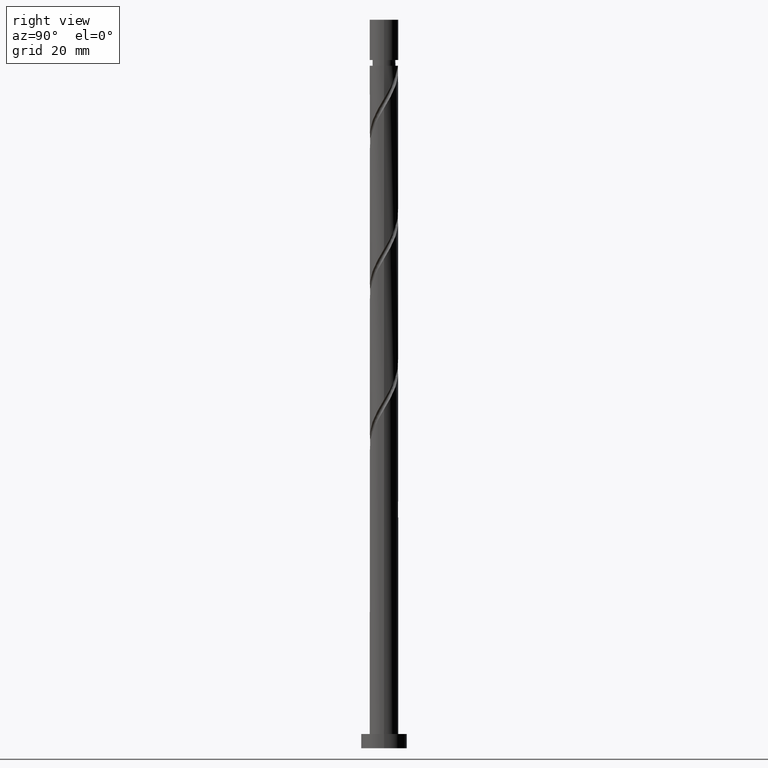
[diagram: clean part render]
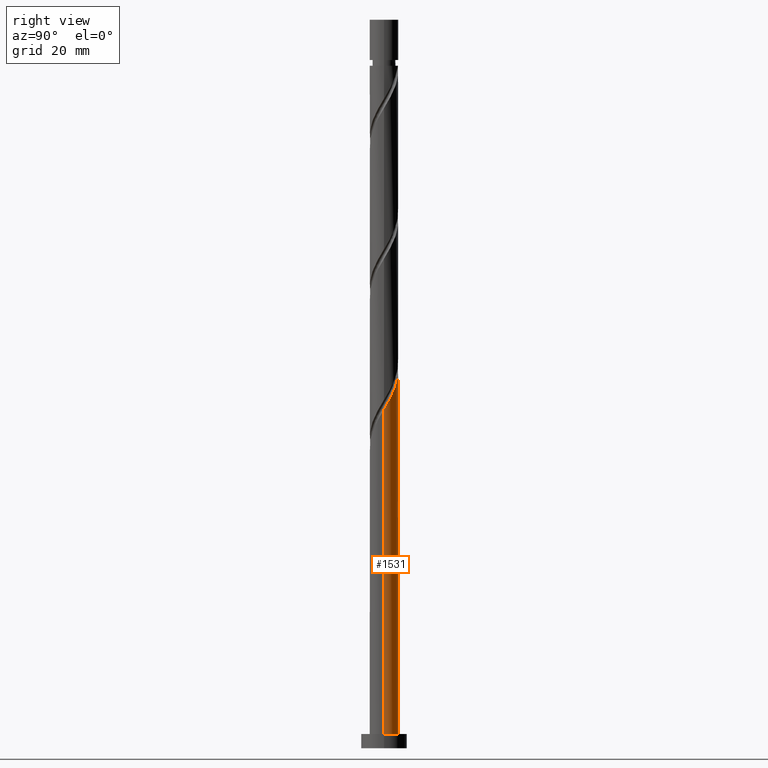
[diagram: same view with one face highlighted and labeled with its STEP entity id]
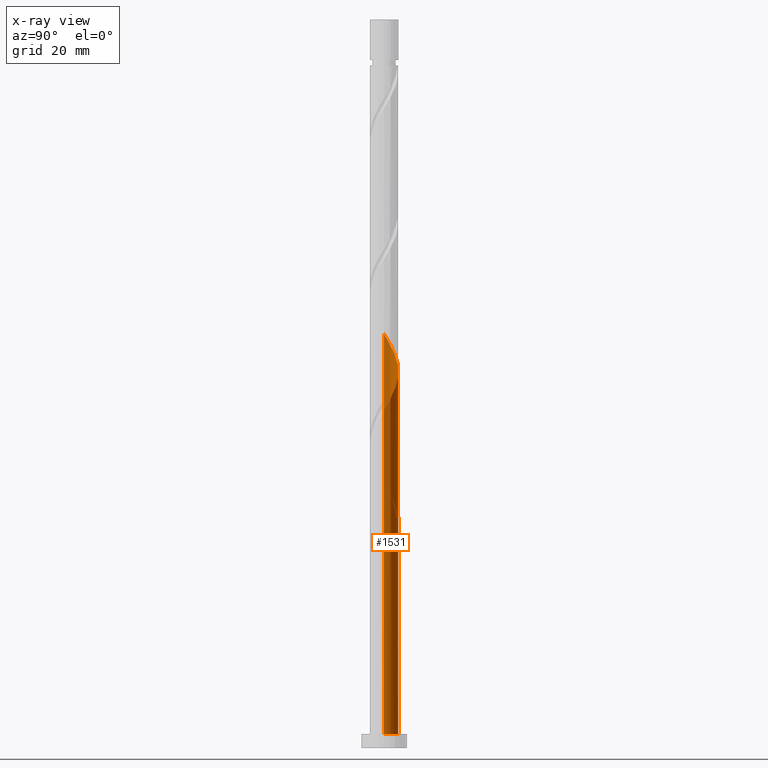
[diagram: x-ray of the same camera — body ghosted, the highlighted face saturated]
A machine part, right view. The second image highlights one B-rep face of the part: STEP entity #1531.
The next image is the same camera in x-ray: the body ghosted, the highlighted face saturated — about 0% of this face is hidden behind the body in this view.
In plain terms, the highlighted cylindrical surface (edge-blend (fillet) strip) has radius 5 mm, axis along (-0, -0, -1).
Its self-contained STEP definition (entity closure, byte-faithful):
#32 = CARTESIAN_POINT ( 'NONE',  ( 4.555741235911176190, 2.060393601091443205, 121.7202963200258523 ) ) ;
#78 = CARTESIAN_POINT ( 'NONE',  ( 3.210609744079814032, 3.833012532097933356, 125.4702963200258807 ) ) ;
#82 = CARTESIAN_POINT ( 'NONE',  ( -0.1203115516804385138, 4.998552303470702896, 82.34529632002593758 ) ) ;
#155 = VERTEX_POINT ( 'NONE', #333 ) ;
#160 = VECTOR ( 'NONE', #949, 1000.000000000000000 ) ;
#164 = CARTESIAN_POINT ( 'NONE',  ( -2.573702359565723352, 4.323590631524826478, 83.28279632002588073 ) ) ;
#165 = AXIS2_PLACEMENT_3D ( 'NONE', #1903, #1021, #742 ) ;
#171 = CARTESIAN_POINT ( 'NONE',  ( -3.471263693360518765, 3.642486534745257742, 137.6577963200258523 ) ) ;
#194 = CARTESIAN_POINT ( 'NONE',  ( -5.000000000000007994, -8.955464112915739142E-17, 144.4207792421198917 ) ) ;
#230 = CARTESIAN_POINT ( 'NONE',  ( 4.323590631524826478, 2.573702359565720688, 122.6577963200258807 ) ) ;
#250 = CARTESIAN_POINT ( 'NONE',  ( -4.323590631524821148, 2.573702359565719799, 90.78279632002590915 ) ) ;
#258 = DIRECTION ( 'NONE',  ( -0.000000000000000000, -0.000000000000000000, -1.000000000000000000 ) ) ;
#317 = CARTESIAN_POINT ( 'NONE',  ( 1.775642098820955139, 4.707916197378424705, 128.2827963200259092 ) ) ;
#321 = CARTESIAN_POINT ( 'NONE',  ( -5.000000000000007105, 0.06016448583194054789, 91.82041655389475920 ) ) ;
#333 = CARTESIAN_POINT ( 'NONE',  ( 0.9949874371066229628, 4.900000000000000355, 80.47029632002589494 ) ) ;
#336 = CARTESIAN_POINT ( 'NONE',  ( -4.984996447238927431, 0.6835131349569563142, 143.2827963200258523 ) ) ;
#384 = CIRCLE ( 'NONE', #687, 5.000000000000000000 ) ;
#386 = EDGE_CURVE ( 'NONE', #1915, #1895, #941, .T. ) ;
#398 = CARTESIAN_POINT ( 'NONE',  ( -2.277187526117659289, 4.451338784106883217, 86.09529632002593758 ) ) ;
#418 = VERTEX_POINT ( 'NONE', #1082 ) ;
#420 = DIRECTION ( 'NONE',  ( -0.000000000000000000, -0.000000000000000000, -1.000000000000000000 ) ) ;
#427 = CARTESIAN_POINT ( 'NONE',  ( 0.000000000000000000, 0.000000000000000000, 254.0000000000000000 ) ) ;
#440 = CARTESIAN_POINT ( 'NONE',  ( -3.833012532097933356, 3.210609744079813144, 86.09529632002590915 ) ) ;
#453 = LINE ( 'NONE', #1758, #934 ) ;
#462 = CARTESIAN_POINT ( 'NONE',  ( 4.900000000000006573, 0.9949874371066211864, 119.8452963200258665 ) ) ;
#506 = CARTESIAN_POINT ( 'NONE',  ( 5.000000000000000000, 6.123233995736766282E-16, 254.0000000000000000 ) ) ;
#515 = ORIENTED_EDGE ( 'NONE', *, *, #897, .F. ) ;
#525 = EDGE_LOOP ( 'NONE', ( #1284, #639, #914, #1750, #515, #1600, #1834, #1137 ) ) ;
#526 = CARTESIAN_POINT ( 'NONE',  ( 0.1203115516804404844, 4.998552303470705560, 131.0952963200258523 ) ) ;
#538 = CARTESIAN_POINT ( 'NONE',  ( -4.787891840297518797, 1.547084842617166389, 92.65779632002590915 ) ) ;
#557 = DIRECTION ( 'NONE',  ( 0.000000000000000000, 0.000000000000000000, 1.000000000000000000 ) ) ;
#561 = CARTESIAN_POINT ( 'NONE',  ( -5.000000000000000000, 0.000000000000000000, 254.0000000000000000 ) ) ;
#583 = CARTESIAN_POINT ( 'NONE',  ( -3.022483026463119060, 3.983038583135042110, 84.22029632002586652 ) ) ;
#584 = EDGE_CURVE ( 'NONE', #1915, #1354, #1095, .T. ) ;
#609 = CARTESIAN_POINT ( 'NONE',  ( -4.451338784106885882, 2.277187526117662841, 87.97029632002586652 ) ) ;
#623 = CARTESIAN_POINT ( 'NONE',  ( -4.194761370835351499, 2.778732953414371654, 139.5327963200259092 ) ) ;
#634 = CARTESIAN_POINT ( 'NONE',  ( 3.983038583135042554, 3.022483026463119060, 123.5952963200258807 ) ) ;
#639 = ORIENTED_EDGE ( 'NONE', *, *, #386, .T. ) ;
#642 = EDGE_CURVE ( 'NONE', #1306, #1733, #677, .T. ) ;
#661 = CARTESIAN_POINT ( 'NONE',  ( -1.775642098820951142, 4.707916197378419376, 85.15779632002592336 ) ) ;
#677 = LINE ( 'NONE', #561, #1872 ) ;
#687 = AXIS2_PLACEMENT_3D ( 'NONE', #1160, #557, #1610 ) ;
#710 = CARTESIAN_POINT ( 'NONE',  ( -5.000000000000007105, -8.955464112915740375E-17, 91.92077924211987749 ) ) ;
#722 = DIRECTION ( 'NONE',  ( -1.000000000000000000, 0.000000000000000000, 0.000000000000000000 ) ) ;
#742 = DIRECTION ( 'NONE',  ( -1.000000000000000000, 0.000000000000000000, 0.000000000000000000 ) ) ;
#756 = AXIS2_PLACEMENT_3D ( 'NONE', #427, #1762, #722 ) ;
#804 = CARTESIAN_POINT ( 'NONE',  ( -4.999999999999995559, 0.5025189076296284751, 94.43154231896829742 ) ) ;
#819 = CARTESIAN_POINT ( 'NONE',  ( 3.642486534745258187, 3.471263693360517433, 124.5327963200258807 ) ) ;
#821 = CIRCLE ( 'NONE', #165, 5.000000000000000000 ) ;
#823 = CARTESIAN_POINT ( 'NONE',  ( -3.642486534745251969, 3.471263693360514324, 88.90779632002590915 ) ) ;
#830 = CARTESIAN_POINT ( 'NONE',  ( -3.983038583135037225, 3.022483026463118172, 89.84529632002592336 ) ) ;
#848 =( BOUNDED_CURVE ( )  B_SPLINE_CURVE ( 2, ( #1248, #804, #1572, #538, #1554, #250, #830, #823, #1544, #1085, #398, #661, #1410, #1427, #82, #1565, #1691 ),
 .UNSPECIFIED., .F., .T. ) 
 B_SPLINE_CURVE_WITH_KNOTS ( ( 3, 2, 2, 2, 2, 2, 2, 2, 3 ),
 ( 0.9295303401299224166, 0.9375000000000000000, 0.9464285714285713969, 0.9553571428571429047, 0.9642857142857143016, 0.9732142857142856984, 0.9821428571428570953, 0.9910714285714286031, 1.000000000000000000 ),
 .UNSPECIFIED. ) 
 CURVE ( )  GEOMETRIC_REPRESENTATION_ITEM ( )  RATIONAL_B_SPLINE_CURVE ( ( 0.9079949616361921994, 0.9039886423360560253, 0.9090909090909224943, 0.9033747362665975889, 0.9090909090909224943, 0.9033747362665975889, 0.9090909090909224943, 0.9033747362665975889, 0.9090909090909224943, 0.9033747362665975889, 0.9090909090909224943, 0.9033747362665975889, 0.9090909090909224943, 0.9033747362665975889, 0.9090909090909224943, 0.9033747362665975889, 0.9090909090909224943 ) ) 
 REPRESENTATION_ITEM ( '' )  );
#861 = CARTESIAN_POINT ( 'NONE',  ( 5.000000000000007105, -5.597165070572337611E-16, 118.1707792421198349 ) ) ;
#867 = VERTEX_POINT ( 'NONE', #1322 ) ;
#886 = CARTESIAN_POINT ( 'NONE',  ( -1.547084842617167277, 4.787891840297527679, 81.40779632002589494 ) ) ;
#892 = CYLINDRICAL_SURFACE ( 'NONE', #756, 5.000000000000000000 ) ;
#897 = EDGE_CURVE ( 'NONE', #418, #1306, #1501, .T. ) ;
#899 = CARTESIAN_POINT ( 'NONE',  ( -0.4428900315960763168, 5.012108159702486354, 132.0327963200258807 ) ) ;
#909 = CARTESIAN_POINT ( 'NONE',  ( -2.060393601091443649, 4.555741235911176190, 134.8452963200258523 ) ) ;
#914 = ORIENTED_EDGE ( 'NONE', *, *, #1363, .T. ) ;
#917 = CARTESIAN_POINT ( 'NONE',  ( -4.998552303470706448, 0.1203115516804394991, 144.2202963200258523 ) ) ;
#934 = VECTOR ( 'NONE', #258, 1000.000000000000000 ) ;
#941 = LINE ( 'NONE', #506, #160 ) ;
#949 = DIRECTION ( 'NONE',  ( -0.000000000000000000, -0.000000000000000000, -1.000000000000000000 ) ) ;
#1016 = CARTESIAN_POINT ( 'NONE',  ( -5.000000000000007994, -8.955464112915740375E-17, 91.92077924211987749 ) ) ;
#1021 = DIRECTION ( 'NONE',  ( 0.000000000000000000, -0.000000000000000000, -1.000000000000000000 ) ) ;
#1037 = CARTESIAN_POINT ( 'NONE',  ( -0.9949874371066207424, 4.900000000000006573, 132.9702963200258239 ) ) ;
#1047 = CARTESIAN_POINT ( 'NONE',  ( 2.778732953414372098, 4.194761370835351499, 126.4077963200259376 ) ) ;
#1060 = CARTESIAN_POINT ( 'NONE',  ( -4.707916197378425593, 1.775642098820954029, 141.4077963200259092 ) ) ;
#1082 = CARTESIAN_POINT ( 'NONE',  ( -0.9949874371066209644, 4.900000000000006573, 80.47029632002589494 ) ) ;
#1085 = CARTESIAN_POINT ( 'NONE',  ( -2.778732953414366769, 4.194761370835347059, 87.03279632002589494 ) ) ;
#1095 =( BOUNDED_CURVE ( )  B_SPLINE_CURVE ( 2, ( #1371, #1188, #462, #1787, #32, #230, #634, #819, #78, #1047, #1256, #317, #1346, #1857, #526, #899, #1037, #1640, #909, #1651, #1492, #171, #1503, #623, #1211, #1060, #1661, #336, #917, #1513, #194 ),
 .UNSPECIFIED., .F., .T. ) 
 B_SPLINE_CURVE_WITH_KNOTS ( ( 3, 2, 2, 2, 2, 2, 2, 2, 2, 2, 2, 2, 2, 2, 2, 3 ),
 ( 0.1795303401299221113, 0.1875000000000000000, 0.1964285714285713969, 0.2053571428571429047, 0.2142857142857143016, 0.2232142857142856984, 0.2321428571428570953, 0.2410714285714286031, 0.2500000000000000000, 0.2589285714285713969, 0.2678571428571429047, 0.2767857142857143016, 0.2857142857142856984, 0.2946428571428570953, 0.3035714285714286031, 0.3045303401299224166 ),
 .UNSPECIFIED. ) 
 CURVE ( )  GEOMETRIC_REPRESENTATION_ITEM ( )  RATIONAL_B_SPLINE_CURVE ( ( 0.9079949616361990827, 0.9039886423360621315, 0.9090909090909289336, 0.9033747362666038061, 0.9090909090909289336, 0.9033747362666038061, 0.9090909090909289336, 0.9033747362666038061, 0.9090909090909289336, 0.9033747362666038061, 0.9090909090909289336, 0.9033747362666038061, 0.9090909090909289336, 0.9033747362666038061, 0.9090909090909289336, 0.9033747362666038061, 0.9090909090909289336, 0.9033747362666038061, 0.9090909090909289336, 0.9033747362666038061, 0.9090909090909289336, 0.9033747362666038061, 0.9090909090909289336, 0.9033747362666038061, 0.9090909090909289336, 0.9033747362666038061, 0.9090909090909289336, 0.9033747362666038061, 0.9090909090909289336, 0.9084770030214704972, 0.9079949616361986386 ) ) 
 REPRESENTATION_ITEM ( '' )  );
#1137 = ORIENTED_EDGE ( 'NONE', *, *, #1906, .F. ) ;
#1160 = CARTESIAN_POINT ( 'NONE',  ( 0.000000000000000000, 0.000000000000000000, 5.000000000000000000 ) ) ;
#1171 = CARTESIAN_POINT ( 'NONE',  ( -5.000000000000007105, -8.955464112915740375E-17, 144.4207792421198917 ) ) ;
#1188 = CARTESIAN_POINT ( 'NONE',  ( 5.000000000000007105, 0.5025189076296082691, 119.0090503210834356 ) ) ;
#1193 = CARTESIAN_POINT ( 'NONE',  ( -4.846456322308677400, 1.229577616888954728, 89.84529632002586652 ) ) ;
#1205 = CARTESIAN_POINT ( 'NONE',  ( -0.9949874371066209644, 4.900000000000006573, 80.47029632002590915 ) ) ;
#1211 = CARTESIAN_POINT ( 'NONE',  ( -4.451338784106885882, 2.277187526117662841, 140.4702963200258239 ) ) ;
#1248 = CARTESIAN_POINT ( 'NONE',  ( -5.000000000000001776, 2.925451610219162544E-14, 95.26981339793194081 ) ) ;
#1256 = CARTESIAN_POINT ( 'NONE',  ( 2.277187526117663285, 4.451338784106885882, 127.3452963200258665 ) ) ;
#1284 = ORIENTED_EDGE ( 'NONE', *, *, #584, .F. ) ;
#1306 = VERTEX_POINT ( 'NONE', #710 ) ;
#1322 = CARTESIAN_POINT ( 'NONE',  ( -5.000000000000002665, 2.925451610219162544E-14, 95.26981339793194081 ) ) ;
#1340 = CARTESIAN_POINT ( 'NONE',  ( -4.707916197378425593, 1.775642098820954029, 88.90779632002589494 ) ) ;
#1346 = CARTESIAN_POINT ( 'NONE',  ( 1.229577616888955616, 4.846456322308677400, 129.2202963200258807 ) ) ;
#1354 = VERTEX_POINT ( 'NONE', #1171 ) ;
#1363 = EDGE_CURVE ( 'NONE', #1895, #1733, #384, .T. ) ;
#1371 = CARTESIAN_POINT ( 'NONE',  ( 5.000000000000007105, -5.597165070572337611E-16, 118.1707792421198349 ) ) ;
#1400 = CARTESIAN_POINT ( 'NONE',  ( -5.000000000000000000, 0.000000000000000000, 5.000000000000000000 ) ) ;
#1410 = CARTESIAN_POINT ( 'NONE',  ( -1.229577616888952507, 4.846456322308672959, 84.22029632002592336 ) ) ;
#1427 = CARTESIAN_POINT ( 'NONE',  ( -0.6835131349569543158, 4.984996447238921213, 83.28279632002588073 ) ) ;
#1444 = EDGE_CURVE ( 'NONE', #418, #155, #821, .T. ) ;
#1445 = CARTESIAN_POINT ( 'NONE',  ( 5.000000000000000000, 6.123233995736766282E-16, 5.000000000000000000 ) ) ;
#1467 = CARTESIAN_POINT ( 'NONE',  ( -4.998552303470706448, 0.1203115516804394991, 91.72029632002588073 ) ) ;
#1477 = CARTESIAN_POINT ( 'NONE',  ( -4.194761370835351499, 2.778732953414371654, 87.03279632002588073 ) ) ;
#1492 = CARTESIAN_POINT ( 'NONE',  ( -3.022483026463119060, 3.983038583135042110, 136.7202963200258807 ) ) ;
#1501 =( BOUNDED_CURVE ( )  B_SPLINE_CURVE ( 2, ( #1205, #886, #1918, #164, #583, #1764, #440, #1477, #609, #1340, #1193, #1793, #1467, #321, #1016 ),
 .UNSPECIFIED., .F., .T. ) 
 B_SPLINE_CURVE_WITH_KNOTS ( ( 3, 2, 2, 2, 2, 2, 2, 3 ),
 ( 0.000000000000000000, 0.008928571428571396851, 0.01785714285714290472, 0.02678571428571430157, 0.03571428571428569843, 0.04464285714285709528, 0.05357142857142860315, 0.05453034012992227092 ),
 .UNSPECIFIED. ) 
 CURVE ( )  GEOMETRIC_REPRESENTATION_ITEM ( )  RATIONAL_B_SPLINE_CURVE ( ( 0.9090909090909289336, 0.9033747362666038061, 0.9090909090909289336, 0.9033747362666038061, 0.9090909090909289336, 0.9033747362666038061, 0.9090909090909289336, 0.9033747362666038061, 0.9090909090909289336, 0.9033747362666038061, 0.9090909090909289336, 0.9033747362666038061, 0.9090909090909289336, 0.9084770030214706082, 0.9079949616361988607 ) ) 
 REPRESENTATION_ITEM ( '' )  );
#1503 = CARTESIAN_POINT ( 'NONE',  ( -3.833012532097933356, 3.210609744079813144, 138.5952963200259092 ) ) ;
#1513 = CARTESIAN_POINT ( 'NONE',  ( -5.000000000000007994, 0.06016448583193140937, 144.3204165538948018 ) ) ;
#1531 = ADVANCED_FACE ( 'NONE', ( #1635 ), #892, .T. ) ;
#1544 = CARTESIAN_POINT ( 'NONE',  ( -3.210609744079810035, 3.833012532097932024, 87.97029632002595179 ) ) ;
#1554 = CARTESIAN_POINT ( 'NONE',  ( -4.555741235911171749, 2.060393601091443649, 91.72029632002592336 ) ) ;
#1565 = CARTESIAN_POINT ( 'NONE',  ( 0.4428900315960774825, 5.012108159702478360, 81.40779632002589494 ) ) ;
#1572 = CARTESIAN_POINT ( 'NONE',  ( -4.900000000000001243, 0.9949874371066220746, 93.59529632002592336 ) ) ;
#1600 = ORIENTED_EDGE ( 'NONE', *, *, #1444, .T. ) ;
#1610 = DIRECTION ( 'NONE',  ( 1.000000000000000000, 0.000000000000000000, 0.000000000000000000 ) ) ;
#1635 = FACE_OUTER_BOUND ( 'NONE', #525, .T. ) ;
#1640 = CARTESIAN_POINT ( 'NONE',  ( -1.547084842617167277, 4.787891840297527679, 133.9077963200258523 ) ) ;
#1651 = CARTESIAN_POINT ( 'NONE',  ( -2.573702359565723352, 4.323590631524826478, 135.7827963200258523 ) ) ;
#1661 = CARTESIAN_POINT ( 'NONE',  ( -4.846456322308677400, 1.229577616888954728, 142.3452963200258807 ) ) ;
#1691 = CARTESIAN_POINT ( 'NONE',  ( 0.9949874371066229628, 4.900000000000000355, 80.47029632002589494 ) ) ;
#1733 = VERTEX_POINT ( 'NONE', #1400 ) ;
#1743 = EDGE_CURVE ( 'NONE', #867, #155, #848, .T. ) ;
#1750 = ORIENTED_EDGE ( 'NONE', *, *, #642, .F. ) ;
#1758 = CARTESIAN_POINT ( 'NONE',  ( -5.000000000000000000, 0.000000000000000000, 254.0000000000000000 ) ) ;
#1762 = DIRECTION ( 'NONE',  ( -0.000000000000000000, -0.000000000000000000, -1.000000000000000000 ) ) ;
#1764 = CARTESIAN_POINT ( 'NONE',  ( -3.471263693360518765, 3.642486534745257742, 85.15779632002590915 ) ) ;
#1787 = CARTESIAN_POINT ( 'NONE',  ( 4.787891840297527679, 1.547084842617166389, 120.7827963200258807 ) ) ;
#1793 = CARTESIAN_POINT ( 'NONE',  ( -4.984996447238927431, 0.6835131349569563142, 90.78279632002589494 ) ) ;
#1834 = ORIENTED_EDGE ( 'NONE', *, *, #1743, .F. ) ;
#1857 = CARTESIAN_POINT ( 'NONE',  ( 0.6835131349569570913, 4.984996447238924766, 130.1577963200258523 ) ) ;
#1872 = VECTOR ( 'NONE', #420, 1000.000000000000000 ) ;
#1895 = VERTEX_POINT ( 'NONE', #1445 ) ;
#1903 = CARTESIAN_POINT ( 'NONE',  ( 0.000000000000000000, 0.000000000000000000, 80.47029632002589494 ) ) ;
#1906 = EDGE_CURVE ( 'NONE', #1354, #867, #453, .T. ) ;
#1915 = VERTEX_POINT ( 'NONE', #861 ) ;
#1918 = CARTESIAN_POINT ( 'NONE',  ( -2.060393601091443649, 4.555741235911176190, 82.34529632002586652 ) ) ;